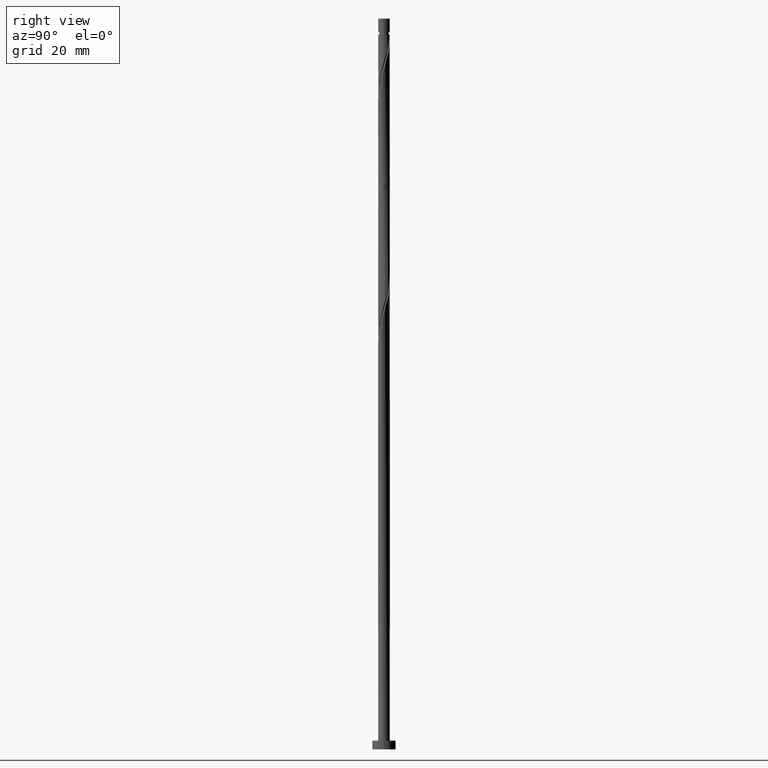
[diagram: clean part render]
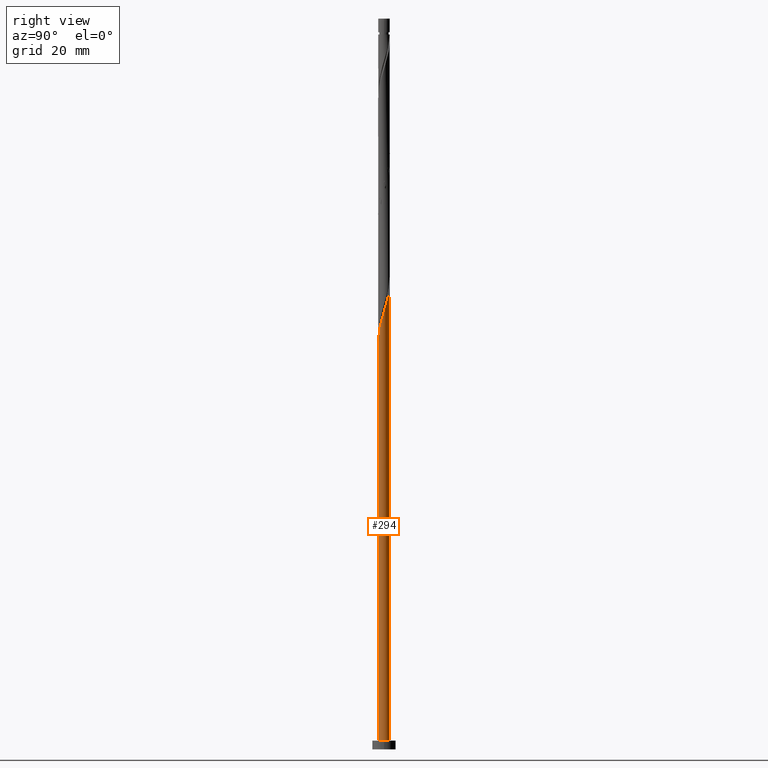
[diagram: same view with one face highlighted and labeled with its STEP entity id]
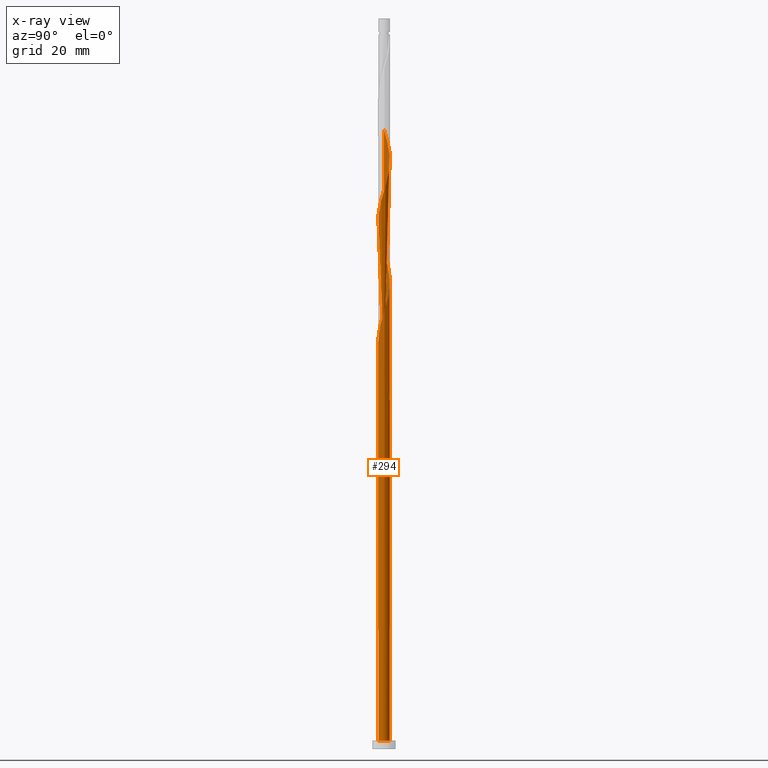
[diagram: x-ray of the same camera — body ghosted, the highlighted face saturated]
A machine part, right view. The second image highlights one B-rep face of the part: STEP entity #294.
The next image is the same camera in x-ray: the body ghosted, the highlighted face saturated — about 0% of this face is hidden behind the body in this view.
In plain terms, the highlighted cylindrical surface (bore or boss wall) has radius 2 mm, axis along (-0, -0, -1).
Its self-contained STEP definition (entity closure, byte-faithful):
#1 = VERTEX_POINT ( 'NONE', #571 ) ;
#2 = CARTESIAN_POINT ( 'NONE',  ( -2.000000000000003109, -5.234578486650210785E-17, 211.9902953438781879 ) ) ;
#8 = CARTESIAN_POINT ( 'NONE',  ( -1.386961462567306347, -1.440950346595318843, 133.9912941428469821 ) ) ;
#11 = VERTEX_POINT ( 'NONE', #836 ) ;
#32 = CARTESIAN_POINT ( 'NONE',  ( -0.6359820619582811085, 1.911674660842114903, 203.7028326043854634 ) ) ;
#38 = AXIS2_PLACEMENT_3D ( 'NONE', #228, #1679, #1374 ) ;
#46 = CARTESIAN_POINT ( 'NONE',  ( -0.8554886662037721745, 1.807799530367486307, 204.5041146556675358 ) ) ;
#56 = EDGE_CURVE ( 'NONE', #11, #1302, #910, .T. ) ;
#60 =( BOUNDED_CURVE ( )  B_SPLINE_CURVE ( 2, ( #1516, #338, #1390, #1109, #1266, #1380, #988, #1400, #1259, #701, #1100, #721, #1368 ),
 .UNSPECIFIED., .F., .T. ) 
 B_SPLINE_CURVE_WITH_KNOTS ( ( 3, 2, 2, 2, 2, 2, 3 ),
 ( 0.000000000000000000, 0.009615384615384581224, 0.01923076923076927347, 0.02884615384615385469, 0.03846153846153843592, 0.04807692307692312816, 0.05452716259738349391 ),
 .UNSPECIFIED. ) 
 CURVE ( )  GEOMETRIC_REPRESENTATION_ITEM ( )  RATIONAL_B_SPLINE_CURVE ( ( 0.9090909090909508050, 0.9024626128164540129, 0.9090909090909508050, 0.9024626128164540129, 0.9090909090909508050, 0.9024626128164540129, 0.9090909090909508050, 0.9024626128164540129, 0.9090909090909508050, 0.9024626128164540129, 0.9090909090909508050, 0.9046444828383105596, 0.9061636035683056090 ) ) 
 REPRESENTATION_ITEM ( '' )  );
#61 = CARTESIAN_POINT ( 'NONE',  ( 1.974395566656741430, 0.4009181193270345833, 150.8182172197700766 ) ) ;
#71 = CARTESIAN_POINT ( 'NONE',  ( 2.000000000000000000, 0.000000000000000000, 3.000000000000000000 ) ) ;
#73 =( BOUNDED_CURVE ( )  B_SPLINE_CURVE ( 2, ( #1520, #1144, #1432, #256, #761, #544, #1475, #1596, #1575, #1662, #1355, #336, #1641, #1378, #833, #345, #1222 ),
 .UNSPECIFIED., .F., .T. ) 
 B_SPLINE_CURVE_WITH_KNOTS ( ( 3, 2, 2, 2, 2, 2, 2, 2, 3 ),
 ( 0.9295271625973833274, 0.9326923076923077094, 0.9423076923076922906, 0.9519230769230768718, 0.9615384615384615641, 0.9711538461538461453, 0.9807692307692307265, 0.9903846153846154188, 1.000000000000000000 ),
 .UNSPECIFIED. ) 
 CURVE ( )  GEOMETRIC_REPRESENTATION_ITEM ( )  RATIONAL_B_SPLINE_CURVE ( ( 0.9061636035682995027, 0.9069090390690881520, 0.9090909090909448098, 0.9024626128164481287, 0.9090909090909448098, 0.9024626128164481287, 0.9090909090909448098, 0.9024626128164481287, 0.9090909090909448098, 0.9024626128164481287, 0.9090909090909448098, 0.9024626128164481287, 0.9090909090909448098, 0.9024626128164481287, 0.9090909090909448098, 0.9024626128164481287, 0.9090909090909448098 ) ) 
 REPRESENTATION_ITEM ( '' )  );
#100 = CARTESIAN_POINT ( 'NONE',  ( -1.074995270449264018, 1.703924399892858155, 163.6387300402829226 ) ) ;
#108 = CARTESIAN_POINT ( 'NONE',  ( -1.839135291735831457, 0.7858634605908146886, 167.6451402966931994 ) ) ;
#136 = EDGE_CURVE ( 'NONE', #11, #1606, #60, .T. ) ;
#151 = CARTESIAN_POINT ( 'NONE',  ( -0.7916353737694011850, -1.852643146165904975, 136.3951402966931710 ) ) ;
#157 = VECTOR ( 'NONE', #222, 1000.000000000000000 ) ;
#169 = CARTESIAN_POINT ( 'NONE',  ( 1.001816893764150951, 1.731000552099496215, 198.0938582454110986 ) ) ;
#179 = CARTESIAN_POINT ( 'NONE',  ( -1.897736400206355256, -0.6313450366731635510, 130.7861659377188062 ) ) ;
#213 = DIRECTION ( 'NONE',  ( 1.000000000000000000, 0.000000000000000000, 0.000000000000000000 ) ) ;
#215 = CIRCLE ( 'NONE', #248, 2.000000000000000000 ) ;
#217 = CARTESIAN_POINT ( 'NONE',  ( 1.934556391662676900, -0.5625520060542003042, 147.6130890146418722 ) ) ;
#222 = DIRECTION ( 'NONE',  ( -0.000000000000000000, -0.000000000000000000, -1.000000000000000000 ) ) ;
#227 = CARTESIAN_POINT ( 'NONE',  ( 1.897736400206355922, 0.6313450366731626628, 193.2861659377188062 ) ) ;
#228 = CARTESIAN_POINT ( 'NONE',  ( 0.000000000000000000, 0.000000000000000000, 3.000000000000000000 ) ) ;
#236 = CARTESIAN_POINT ( 'NONE',  ( 1.743714191808986458, -1.009174915127430738, 187.6771915787444982 ) ) ;
#246 = CARTESIAN_POINT ( 'NONE',  ( -1.263264465859909036, 1.550536323113937520, 164.4400120915649666 ) ) ;
#248 = AXIS2_PLACEMENT_3D ( 'NONE', #316, #1546, #213 ) ;
#251 = EDGE_CURVE ( 'NONE', #436, #1473, #1251, .T. ) ;
#256 = CARTESIAN_POINT ( 'NONE',  ( -1.974395566656737877, 0.4009181193270346388, 129.9848838864367622 ) ) ;
#264 = CARTESIAN_POINT ( 'NONE',  ( -2.000000000000003109, -5.234578486650210785E-17, 211.9902953438781879 ) ) ;
#267 = CARTESIAN_POINT ( 'NONE',  ( -1.821077233755968861, -0.8617719540192931849, 173.2541146556675073 ) ) ;
#291 = CARTESIAN_POINT ( 'NONE',  ( 1.263264465859909036, -1.550536323113937520, 143.6066787582315669 ) ) ;
#294 = ADVANCED_FACE ( 'NONE', ( #1130 ), #1671, .T. ) ;
#298 = CARTESIAN_POINT ( 'NONE',  ( -1.211998413758899718, -1.609357958033089009, 134.7925761941291114 ) ) ;
#316 = CARTESIAN_POINT ( 'NONE',  ( 0.000000000000000000, 0.000000000000000000, 3.000000000000000000 ) ) ;
#319 = CARTESIAN_POINT ( 'NONE',  ( 1.691500872565840918, 1.067157344588421708, 194.8887300402828657 ) ) ;
#330 = ORIENTED_EDGE ( 'NONE', *, *, #1541, .T. ) ;
#336 = CARTESIAN_POINT ( 'NONE',  ( -0.7916353737693995196, 1.852643146165902310, 123.5746274761802823 ) ) ;
#338 = CARTESIAN_POINT ( 'NONE',  ( -0.6359820619582811085, 1.911674660842114903, 120.3694992710521632 ) ) ;
#343 = CARTESIAN_POINT ( 'NONE',  ( 1.691500872565840918, 1.067157344588421708, 153.2220633736161801 ) ) ;
#345 = CARTESIAN_POINT ( 'NONE',  ( 0.1600078877270190436, 2.008325339157888134, 120.3694992710521348 ) ) ;
#357 = CARTESIAN_POINT ( 'NONE',  ( -2.000000000000000000, 0.000000000000000000, 250.0000000000000000 ) ) ;
#362 = CARTESIAN_POINT ( 'NONE',  ( 0.000000000000000000, 0.000000000000000000, 119.5682172197701760 ) ) ;
#375 = CARTESIAN_POINT ( 'NONE',  ( 0.08262873780345734998, 1.998292393942642908, 159.6323197838726173 ) ) ;
#389 = CARTESIAN_POINT ( 'NONE',  ( -0.8554886662037721745, 1.807799530367486307, 162.8374479890008786 ) ) ;
#396 = CARTESIAN_POINT ( 'NONE',  ( 0.3252653633339306904, 1.988259448727395462, 158.8310377325905733 ) ) ;
#402 = CARTESIAN_POINT ( 'NONE',  ( -0.5584503685516657434, -1.920451297446650329, 178.8630890146419290 ) ) ;
#407 = CARTESIAN_POINT ( 'NONE',  ( -1.993682386258022188, -0.1588412500722965470, 129.1836018351547182 ) ) ;
#420 = CARTESIAN_POINT ( 'NONE',  ( -1.743714191808986680, 1.009174915127430294, 208.5105249120778126 ) ) ;
#424 = CARTESIAN_POINT ( 'NONE',  ( -0.08262873780345621200, -1.998292393942642908, 138.7989864505392745 ) ) ;
#427 = ORIENTED_EDGE ( 'NONE', *, *, #136, .F. ) ;
#432 = CARTESIAN_POINT ( 'NONE',  ( -1.974395566656741430, -0.4009181193270349164, 129.9848838864368190 ) ) ;
#436 = VERTEX_POINT ( 'NONE', #264 ) ;
#439 = CARTESIAN_POINT ( 'NONE',  ( -0.3979949748426495626, 1.960000000000002629, 202.9015505531033625 ) ) ;
#455 = CARTESIAN_POINT ( 'NONE',  ( 1.561924511375714308, 1.272542735157548677, 195.6900120915650518 ) ) ;
#465 = CARTESIAN_POINT ( 'NONE',  ( 1.839135291735831457, -0.7858634605908146886, 146.8118069633597997 ) ) ;
#482 = CARTESIAN_POINT ( 'NONE',  ( 1.839135291735831457, -0.7858634605908146886, 188.4784736300264854 ) ) ;
#492 = DIRECTION ( 'NONE',  ( -0.000000000000000000, -0.000000000000000000, -1.000000000000000000 ) ) ;
#501 = CARTESIAN_POINT ( 'NONE',  ( -0.6359820619582811085, 1.911674660842114903, 162.0361659377188914 ) ) ;
#502 = CARTESIAN_POINT ( 'NONE',  ( 1.934556391662676900, -0.5625520060542003042, 189.2797556813085578 ) ) ;
#512 = CARTESIAN_POINT ( 'NONE',  ( -0.1600078877270179334, 2.008325339157891243, 160.4336018351547182 ) ) ;
#513 = CARTESIAN_POINT ( 'NONE',  ( 1.993682386258022632, 0.1588412500722958531, 191.6836018351546898 ) ) ;
#533 = EDGE_LOOP ( 'NONE', ( #1577, #1586, #1405, #330, #1350, #903, #427, #1269, #922 ) ) ;
#534 = CARTESIAN_POINT ( 'NONE',  ( -1.993682386258022188, -0.1588412500722965470, 170.8502685018213185 ) ) ;
#538 = CARTESIAN_POINT ( 'NONE',  ( 0.8554886662037717304, -1.807799530367486529, 142.0041146556674789 ) ) ;
#544 = CARTESIAN_POINT ( 'NONE',  ( -1.821077233755965530, 0.8617719540192920746, 128.3823197838726173 ) ) ;
#548 = LINE ( 'NONE', #660, #1164 ) ;
#562 = CIRCLE ( 'NONE', #38, 2.000000000000000000 ) ;
#565 = DIRECTION ( 'NONE',  ( -0.000000000000000000, -0.000000000000000000, -1.000000000000000000 ) ) ;
#571 = CARTESIAN_POINT ( 'NONE',  ( -2.000000000000000000, 0.000000000000000000, 3.000000000000000000 ) ) ;
#576 = CARTESIAN_POINT ( 'NONE',  ( 1.993682386258022632, 0.1588412500722958531, 150.0169351684880326 ) ) ;
#599 = CARTESIAN_POINT ( 'NONE',  ( -2.000000000000000000, 2.669635028191625354E-15, 131.3128057623286224 ) ) ;
#626 = CARTESIAN_POINT ( 'NONE',  ( -1.973762798760990034, 0.3228938126183202861, 169.2477043992572305 ) ) ;
#627 = CARTESIAN_POINT ( 'NONE',  ( 1.597623926539770256, -1.203161580731224145, 186.8759095274623974 ) ) ;
#637 = CARTESIAN_POINT ( 'NONE',  ( 2.012969205859303834, -0.08323561918244104518, 190.8823197838726742 ) ) ;
#646 = CARTESIAN_POINT ( 'NONE',  ( -1.386961462567306347, -1.440950346595318843, 175.6579608095136109 ) ) ;
#660 = CARTESIAN_POINT ( 'NONE',  ( -2.000000000000000000, 0.000000000000000000, 250.0000000000000000 ) ) ;
#670 = CARTESIAN_POINT ( 'NONE',  ( -1.451533661270556053, 1.397148246335017996, 206.9079608095136962 ) ) ;
#671 = CARTESIAN_POINT ( 'NONE',  ( 0.8554886662037717304, -1.807799530367486529, 183.6707813223341645 ) ) ;
#674 = CARTESIAN_POINT ( 'NONE',  ( -0.1600078877270179334, 2.008325339157891243, 202.1002685018213185 ) ) ;
#685 = CARTESIAN_POINT ( 'NONE',  ( 2.012969205859303834, -0.08323561918244104518, 149.2156531172059601 ) ) ;
#695 = CARTESIAN_POINT ( 'NONE',  ( 1.973762798760990034, -0.3228938126183206192, 148.4143710659239161 ) ) ;
#701 = CARTESIAN_POINT ( 'NONE',  ( -1.934556391662677566, 0.5625520060541993050, 126.7797556813085293 ) ) ;
#721 = CARTESIAN_POINT ( 'NONE',  ( -2.000000000000003553, 0.1625128770740859041, 128.1172612731965614 ) ) ;
#734 = CARTESIAN_POINT ( 'NONE',  ( -0.3979949748426495626, 1.960000000000002629, 161.2348838864367337 ) ) ;
#743 = CARTESIAN_POINT ( 'NONE',  ( 0.7916353737694016290, 1.852643146165904975, 157.2284736300264569 ) ) ;
#754 = CARTESIAN_POINT ( 'NONE',  ( -1.451533661270556053, 1.397148246335017996, 165.2412941428470106 ) ) ;
#761 = CARTESIAN_POINT ( 'NONE',  ( -1.897736400206351481, 0.6313450366731636620, 129.1836018351547182 ) ) ;
#779 = CARTESIAN_POINT ( 'NONE',  ( -1.934556391662677566, 0.5625520060541993050, 210.1130890146418722 ) ) ;
#780 = CARTESIAN_POINT ( 'NONE',  ( 0.1600078877270181554, -2.008325339157891243, 181.2669351684880326 ) ) ;
#783 = CARTESIAN_POINT ( 'NONE',  ( 0.3979949748426497291, -1.960000000000002629, 140.4015505531034194 ) ) ;
#790 = CARTESIAN_POINT ( 'NONE',  ( -1.973762798760990034, 0.3228938126183202861, 210.9143710659238877 ) ) ;
#791 = CARTESIAN_POINT ( 'NONE',  ( -1.691500872565841140, -1.067157344588421486, 174.0553967069495229 ) ) ;
#794 = CARTESIAN_POINT ( 'NONE',  ( -1.821077233755968861, -0.8617719540192931849, 131.5874479890008786 ) ) ;
#816 = CARTESIAN_POINT ( 'NONE',  ( 0.5584503685516667426, 1.920451297446649663, 199.6964223479752150 ) ) ;
#827 = CARTESIAN_POINT ( 'NONE',  ( 1.211998413758900384, 1.609357958033088343, 197.2925761941290546 ) ) ;
#833 = CARTESIAN_POINT ( 'NONE',  ( -0.08262873780345499075, 1.998292393942640688, 121.1707813223341645 ) ) ;
#836 = CARTESIAN_POINT ( 'NONE',  ( -0.3979949748426494516, 1.960000000000002629, 119.5682172197700623 ) ) ;
#858 = DIRECTION ( 'NONE',  ( 0.000000000000000000, 1.000000000000000000, -5.551115123125782702E-14 ) ) ;
#871 = CARTESIAN_POINT ( 'NONE',  ( 1.386961462567306569, 1.440950346595318843, 154.8246274761802965 ) ) ;
#875 = DIRECTION ( 'NONE',  ( -1.000000000000000000, 0.000000000000000000, 0.000000000000000000 ) ) ;
#892 = CARTESIAN_POINT ( 'NONE',  ( -1.743714191808986680, 1.009174915127430294, 166.8438582454111838 ) ) ;
#903 = ORIENTED_EDGE ( 'NONE', *, *, #1123, .F. ) ;
#904 = CARTESIAN_POINT ( 'NONE',  ( -2.000000000000003109, 0.1625128770740929540, 211.4505946065299042 ) ) ;
#909 = CARTESIAN_POINT ( 'NONE',  ( -1.561924511375713642, -1.272542735157549787, 133.1900120915649381 ) ) ;
#910 = CIRCLE ( 'NONE', #1250, 2.000000000000000000 ) ;
#918 = CARTESIAN_POINT ( 'NONE',  ( 1.074995270449263352, -1.703924399892858377, 142.8053967069496082 ) ) ;
#922 = ORIENTED_EDGE ( 'NONE', *, *, #1381, .F. ) ;
#930 = EDGE_CURVE ( 'NONE', #1549, #1, #215, .T. ) ;
#935 = CARTESIAN_POINT ( 'NONE',  ( -1.561924511375713642, -1.272542735157549787, 174.8566787582315953 ) ) ;
#939 = CARTESIAN_POINT ( 'NONE',  ( -0.5584503685516657434, -1.920451297446650329, 137.1964223479752150 ) ) ;
#960 = DIRECTION ( 'NONE',  ( 0.000000000000000000, -5.204170427930423177E-14, -1.000000000000000000 ) ) ;
#963 = CARTESIAN_POINT ( 'NONE',  ( -1.263264465859909036, 1.550536323113937520, 206.1066787582315953 ) ) ;
#976 = CARTESIAN_POINT ( 'NONE',  ( 1.821077233755969083, 0.8617719540192924077, 152.4207813223341645 ) ) ;
#977 = CARTESIAN_POINT ( 'NONE',  ( -2.000000000000003109, -1.921838101527291543E-15, 128.6569620105448735 ) ) ;
#988 = CARTESIAN_POINT ( 'NONE',  ( -1.597623926539770700, 1.203161580731223923, 124.3759095274623832 ) ) ;
#1017 = CARTESIAN_POINT ( 'NONE',  ( -2.012969205859303834, 0.08323561918244121172, 170.0489864505393598 ) ) ;
#1018 = CARTESIAN_POINT ( 'NONE',  ( 1.973762798760990034, -0.3228938126183206192, 190.0810377325905733 ) ) ;
#1026 = CARTESIAN_POINT ( 'NONE',  ( 1.974395566656741430, 0.4009181193270345833, 192.4848838864367906 ) ) ;
#1037 = CARTESIAN_POINT ( 'NONE',  ( -0.08262873780345621200, -1.998292393942642908, 180.4656531172059033 ) ) ;
#1046 = CARTESIAN_POINT ( 'NONE',  ( -0.3252653633339305239, -1.988259448727395462, 179.6643710659239730 ) ) ;
#1055 = CARTESIAN_POINT ( 'NONE',  ( 0.6359820619582808865, -1.911674660842115347, 182.8694992710521490 ) ) ;
#1060 = CARTESIAN_POINT ( 'NONE',  ( 1.597623926539770256, -1.203161580731224145, 145.2092428607957402 ) ) ;
#1065 = CARTESIAN_POINT ( 'NONE',  ( -1.897736400206355256, -0.6313450366731635510, 172.4528326043855202 ) ) ;
#1068 = CARTESIAN_POINT ( 'NONE',  ( -2.000000000000003109, -1.921838101527291543E-15, 128.6569620105448735 ) ) ;
#1078 = CARTESIAN_POINT ( 'NONE',  ( 0.7916353737694016290, 1.852643146165904975, 198.8951402966931425 ) ) ;
#1080 = CARTESIAN_POINT ( 'NONE',  ( -2.000000000000002665, -0.07954626067354200747, 128.9211329261778758 ) ) ;
#1100 = CARTESIAN_POINT ( 'NONE',  ( -1.973762798760990034, 0.3228938126183202861, 127.5810377325905733 ) ) ;
#1109 = CARTESIAN_POINT ( 'NONE',  ( -1.074995270449264018, 1.703924399892858155, 121.9720633736162654 ) ) ;
#1123 = EDGE_CURVE ( 'NONE', #1606, #1, #548, .T. ) ;
#1130 = FACE_OUTER_BOUND ( 'NONE', #533, .T. ) ;
#1131 = CARTESIAN_POINT ( 'NONE',  ( 1.451533661270556053, -1.397148246335018440, 186.0746274761802965 ) ) ;
#1139 = EDGE_CURVE ( 'NONE', #1606, #436, #1464, .T. ) ;
#1143 = CARTESIAN_POINT ( 'NONE',  ( 0.5584503685516667426, 1.920451297446649663, 158.0297556813085009 ) ) ;
#1144 = CARTESIAN_POINT ( 'NONE',  ( -2.000000000000000000, 0.07954626067353848251, 131.0486348466956770 ) ) ;
#1164 = VECTOR ( 'NONE', #565, 1000.000000000000000 ) ;
#1172 = CARTESIAN_POINT ( 'NONE',  ( -1.211998413758899718, -1.609357958033089009, 176.4592428607957402 ) ) ;
#1182 = CARTESIAN_POINT ( 'NONE',  ( -1.691500872565841140, -1.067157344588421486, 132.3887300402829226 ) ) ;
#1188 = CARTESIAN_POINT ( 'NONE',  ( -1.839135291735831457, 0.7858634605908146886, 209.3118069633598282 ) ) ;
#1190 = CARTESIAN_POINT ( 'NONE',  ( -0.7916353737694011850, -1.852643146165904975, 178.0618069633598282 ) ) ;
#1195 = CARTESIAN_POINT ( 'NONE',  ( -0.3252653633339305239, -1.988259448727395462, 137.9977043992572590 ) ) ;
#1216 = CARTESIAN_POINT ( 'NONE',  ( 0.3252653633339306904, 1.988259448727395462, 200.4977043992572874 ) ) ;
#1222 = CARTESIAN_POINT ( 'NONE',  ( 0.3979949748426501732, 1.959999999999999520, 119.5682172197700623 ) ) ;
#1229 = CARTESIAN_POINT ( 'NONE',  ( 1.821077233755969083, 0.8617719540192924077, 194.0874479890008786 ) ) ;
#1250 = AXIS2_PLACEMENT_3D ( 'NONE', #362, #960, #858 ) ;
#1251 = LINE ( 'NONE', #357, #157 ) ;
#1259 = CARTESIAN_POINT ( 'NONE',  ( -1.839135291735831457, 0.7858634605908146886, 125.9784736300264854 ) ) ;
#1266 = CARTESIAN_POINT ( 'NONE',  ( -1.263264465859909036, 1.550536323113937520, 122.7733454248982667 ) ) ;
#1269 = ORIENTED_EDGE ( 'NONE', *, *, #56, .T. ) ;
#1283 = CARTESIAN_POINT ( 'NONE',  ( -1.597623926539770700, 1.203161580731223923, 166.0425761941290261 ) ) ;
#1296 = CARTESIAN_POINT ( 'NONE',  ( 1.561924511375714308, 1.272542735157548677, 154.0233454248982525 ) ) ;
#1302 = VERTEX_POINT ( 'NONE', #1369 ) ;
#1313 = CARTESIAN_POINT ( 'NONE',  ( 0.6359820619582808865, -1.911674660842115347, 141.2028326043854918 ) ) ;
#1331 = AXIS2_PLACEMENT_3D ( 'NONE', #1682, #492, #875 ) ;
#1336 = CARTESIAN_POINT ( 'NONE',  ( -1.974395566656741430, -0.4009181193270349164, 171.6515505531033909 ) ) ;
#1338 = CARTESIAN_POINT ( 'NONE',  ( 1.386961462567306569, 1.440950346595318843, 196.4912941428469821 ) ) ;
#1350 = ORIENTED_EDGE ( 'NONE', *, *, #930, .T. ) ;
#1355 = CARTESIAN_POINT ( 'NONE',  ( -1.001816893764148064, 1.731000552099494438, 124.3759095274623832 ) ) ;
#1358 = CARTESIAN_POINT ( 'NONE',  ( 1.263264465859909036, -1.550536323113937520, 185.2733454248982241 ) ) ;
#1361 = CARTESIAN_POINT ( 'NONE',  ( -1.074995270449264018, 1.703924399892858155, 205.3053967069495513 ) ) ;
#1368 = CARTESIAN_POINT ( 'NONE',  ( -2.000000000000003109, -1.921838101527291543E-15, 128.6569620105448735 ) ) ;
#1369 = CARTESIAN_POINT ( 'NONE',  ( 0.3979949748426501177, 1.959999999999999520, 119.5682172197700623 ) ) ;
#1374 = DIRECTION ( 'NONE',  ( 1.000000000000000000, 0.000000000000000000, 0.000000000000000000 ) ) ;
#1378 = CARTESIAN_POINT ( 'NONE',  ( -0.3252653633339290806, 1.988259448727392131, 121.9720633736161943 ) ) ;
#1380 = CARTESIAN_POINT ( 'NONE',  ( -1.451533661270556053, 1.397148246335017996, 123.5746274761803818 ) ) ;
#1381 = EDGE_CURVE ( 'NONE', #1473, #1302, #73, .T. ) ;
#1390 = CARTESIAN_POINT ( 'NONE',  ( -0.8554886662037721745, 1.807799530367486307, 121.1707813223341645 ) ) ;
#1400 = CARTESIAN_POINT ( 'NONE',  ( -1.743714191808986680, 1.009174915127430294, 125.1771915787444556 ) ) ;
#1405 = ORIENTED_EDGE ( 'NONE', *, *, #1123, .T. ) ;
#1423 = CARTESIAN_POINT ( 'NONE',  ( 1.211998413758900384, 1.609357958033088343, 155.6259095274623974 ) ) ;
#1432 = CARTESIAN_POINT ( 'NONE',  ( -1.993682386258019523, 0.1588412500722972409, 130.7861659377188062 ) ) ;
#1441 = CARTESIAN_POINT ( 'NONE',  ( -1.934556391662677566, 0.5625520060541993050, 168.4464223479751865 ) ) ;
#1453 = CARTESIAN_POINT ( 'NONE',  ( -1.001816893764150285, -1.731000552099496215, 135.5938582454110701 ) ) ;
#1460 = CARTESIAN_POINT ( 'NONE',  ( 1.451533661270556053, -1.397148246335018440, 144.4079608095136962 ) ) ;
#1464 =( BOUNDED_CURVE ( )  B_SPLINE_CURVE ( 2, ( #1068, #1080, #407, #432, #179, #794, #1182, #909, #8, #298, #1453, #151, #939, #1195, #424, #1480, #783, #1313, #538, #918, #291, #1460, #1060, #1602, #465, #217, #695, #685, #576, #61, #1508, #976, #343, #1296, #871, #1423, #1678, #743, #1143, #396, #375, #512, #734, #501, #389, #100, #246, #754, #1283, #892, #108, #1441, #626, #1017, #534, #1336, #1065, #267, #791, #935, #646, #1172, #1714, #1190, #402, #1046, #1037, #780, #1608, #1055, #671, #1625, #1358, #1131, #627, #236, #482, #502, #1018, #637, #513, #1026, #227, #1229, #319, #455, #1338, #827, #169, #1078, #816, #1216, #1617, #674, #439, #32, #46, #1361, #963, #670, #1466, #420, #1188, #779, #790, #904, #2 ),
 .UNSPECIFIED., .F., .T. ) 
 B_SPLINE_CURVE_WITH_KNOTS ( ( 3, 2, 2, 2, 2, 2, 2, 2, 2, 2, 2, 2, 2, 2, 2, 2, 2, 2, 2, 2, 2, 2, 2, 2, 2, 2, 2, 2, 2, 2, 2, 2, 2, 2, 2, 2, 2, 2, 2, 2, 2, 2, 2, 2, 2, 2, 2, 2, 2, 2, 2, 2, 2, 3 ),
 ( 0.05452716259738349391, 0.05769230769230770939, 0.06730769230769229061, 0.07692307692307687184, 0.08653846153846156408, 0.09615384615384614531, 0.1057692307692307265, 0.1153846153846154188, 0.1250000000000000000, 0.1346153846153845812, 0.1442307692307692735, 0.1538461538461538547, 0.1634615384615384359, 0.1730769230769231282, 0.1826923076923077094, 0.1923076923076922906, 0.2019230769230768718, 0.2115384615384615641, 0.2211538461538461453, 0.2307692307692307265, 0.2403846153846154188, 0.2500000000000000000, 0.2596153846153845812, 0.2692307692307692735, 0.2788461538461538547, 0.2884615384615384359, 0.2980769230769231282, 0.3076923076923077094, 0.3173076923076922906, 0.3269230769230768718, 0.3365384615384615641, 0.3461538461538461453, 0.3557692307692307265, 0.3653846153846154188, 0.3750000000000000000, 0.3846153846153845812, 0.3942307692307692735, 0.4038461538461538547, 0.4134615384615384359, 0.4230769230769231282, 0.4326923076923077094, 0.4423076923076922906, 0.4519230769230768718, 0.4615384615384615641, 0.4711538461538461453, 0.4807692307692307265, 0.4903846153846154188, 0.5000000000000000000, 0.5096153846153845812, 0.5192307692307691624, 0.5288461538461538547, 0.5384615384615384359, 0.5480769230769231282, 0.5545271625973832164 ),
 .UNSPECIFIED. ) 
 CURVE ( )  GEOMETRIC_REPRESENTATION_ITEM ( )  RATIONAL_B_SPLINE_CURVE ( ( 0.9061636035683056090, 0.9069090390690942582, 0.9090909090909508050, 0.9024626128164540129, 0.9090909090909508050, 0.9024626128164540129, 0.9090909090909508050, 0.9024626128164540129, 0.9090909090909508050, 0.9024626128164540129, 0.9090909090909508050, 0.9024626128164540129, 0.9090909090909508050, 0.9024626128164540129, 0.9090909090909508050, 0.9024626128164540129, 0.9090909090909508050, 0.9024626128164540129, 0.9090909090909508050, 0.9024626128164540129, 0.9090909090909508050, 0.9024626128164540129, 0.9090909090909508050, 0.9024626128164540129, 0.9090909090909508050, 0.9024626128164540129, 0.9090909090909508050, 0.9024626128164540129, 0.9090909090909508050, 0.9024626128164540129, 0.9090909090909508050, 0.9024626128164540129, 0.9090909090909508050, 0.9024626128164540129, 0.9090909090909508050, 0.9024626128164540129, 0.9090909090909508050, 0.9024626128164540129, 0.9090909090909508050, 0.9024626128164540129, 0.9090909090909508050, 0.9024626128164540129, 0.9090909090909508050, 0.9024626128164540129, 0.9090909090909508050, 0.9024626128164540129, 0.9090909090909508050, 0.9024626128164540129, 0.9090909090909508050, 0.9024626128164540129, 0.9090909090909508050, 0.9024626128164540129, 0.9090909090909508050, 0.9024626128164540129, 0.9090909090909508050, 0.9024626128164540129, 0.9090909090909508050, 0.9024626128164540129, 0.9090909090909508050, 0.9024626128164540129, 0.9090909090909508050, 0.9024626128164540129, 0.9090909090909508050, 0.9024626128164540129, 0.9090909090909508050, 0.9024626128164540129, 0.9090909090909508050, 0.9024626128164540129, 0.9090909090909508050, 0.9024626128164540129, 0.9090909090909508050, 0.9024626128164540129, 0.9090909090909508050, 0.9024626128164540129, 0.9090909090909508050, 0.9024626128164540129, 0.9090909090909508050, 0.9024626128164540129, 0.9090909090909508050, 0.9024626128164540129, 0.9090909090909508050, 0.9024626128164540129, 0.9090909090909508050, 0.9024626128164540129, 0.9090909090909508050, 0.9024626128164540129, 0.9090909090909508050, 0.9024626128164540129, 0.9090909090909508050, 0.9024626128164540129, 0.9090909090909508050, 0.9024626128164540129, 0.9090909090909508050, 0.9024626128164540129, 0.9090909090909508050, 0.9024626128164540129, 0.9090909090909508050, 0.9024626128164540129, 0.9090909090909508050, 0.9024626128164540129, 0.9090909090909508050, 0.9024626128164540129, 0.9090909090909508050, 0.9024626128164540129, 0.9090909090909508050, 0.9046444828383106707, 0.9061636035683054979 ) ) 
 REPRESENTATION_ITEM ( '' )  );
#1466 = CARTESIAN_POINT ( 'NONE',  ( -1.597623926539770700, 1.203161580731223923, 207.7092428607956833 ) ) ;
#1473 = VERTEX_POINT ( 'NONE', #599 ) ;
#1475 = CARTESIAN_POINT ( 'NONE',  ( -1.691500872565838032, 1.067157344588420598, 127.5810377325905733 ) ) ;
#1480 = CARTESIAN_POINT ( 'NONE',  ( 0.1600078877270181554, -2.008325339157891243, 139.6002685018214038 ) ) ;
#1508 = CARTESIAN_POINT ( 'NONE',  ( 1.897736400206355922, 0.6313450366731626628, 151.6194992710521205 ) ) ;
#1516 = CARTESIAN_POINT ( 'NONE',  ( -0.3979949748426494516, 1.960000000000002629, 119.5682172197700623 ) ) ;
#1520 = CARTESIAN_POINT ( 'NONE',  ( -2.000000000000000000, 2.669635028191625354E-15, 131.3128057623286224 ) ) ;
#1541 = EDGE_CURVE ( 'NONE', #1, #1549, #562, .T. ) ;
#1546 = DIRECTION ( 'NONE',  ( 0.000000000000000000, 0.000000000000000000, 1.000000000000000000 ) ) ;
#1549 = VERTEX_POINT ( 'NONE', #71 ) ;
#1575 = CARTESIAN_POINT ( 'NONE',  ( -1.386961462567303904, 1.440950346595317955, 125.9784736300264854 ) ) ;
#1577 = ORIENTED_EDGE ( 'NONE', *, *, #251, .F. ) ;
#1586 = ORIENTED_EDGE ( 'NONE', *, *, #1139, .F. ) ;
#1596 = CARTESIAN_POINT ( 'NONE',  ( -1.561924511375710978, 1.272542735157548233, 126.7797556813085009 ) ) ;
#1602 = CARTESIAN_POINT ( 'NONE',  ( 1.743714191808986458, -1.009174915127430738, 146.0105249120778126 ) ) ;
#1606 = VERTEX_POINT ( 'NONE', #977 ) ;
#1608 = CARTESIAN_POINT ( 'NONE',  ( 0.3979949748426497291, -1.960000000000002629, 182.0682172197701050 ) ) ;
#1617 = CARTESIAN_POINT ( 'NONE',  ( 0.08262873780345734998, 1.998292393942642908, 201.2989864505392745 ) ) ;
#1625 = CARTESIAN_POINT ( 'NONE',  ( 1.074995270449263352, -1.703924399892858377, 184.4720633736162370 ) ) ;
#1641 = CARTESIAN_POINT ( 'NONE',  ( -0.5584503685516643001, 1.920451297446647221, 122.7733454248982952 ) ) ;
#1662 = CARTESIAN_POINT ( 'NONE',  ( -1.211998413758896609, 1.609357958033087010, 125.1771915787444414 ) ) ;
#1671 = CYLINDRICAL_SURFACE ( 'NONE', #1331, 2.000000000000000000 ) ;
#1678 = CARTESIAN_POINT ( 'NONE',  ( 1.001816893764150951, 1.731000552099496215, 156.4271915787444414 ) ) ;
#1679 = DIRECTION ( 'NONE',  ( 0.000000000000000000, 0.000000000000000000, 1.000000000000000000 ) ) ;
#1682 = CARTESIAN_POINT ( 'NONE',  ( 0.000000000000000000, 0.000000000000000000, 250.0000000000000000 ) ) ;
#1714 = CARTESIAN_POINT ( 'NONE',  ( -1.001816893764150285, -1.731000552099496215, 177.2605249120777842 ) ) ;